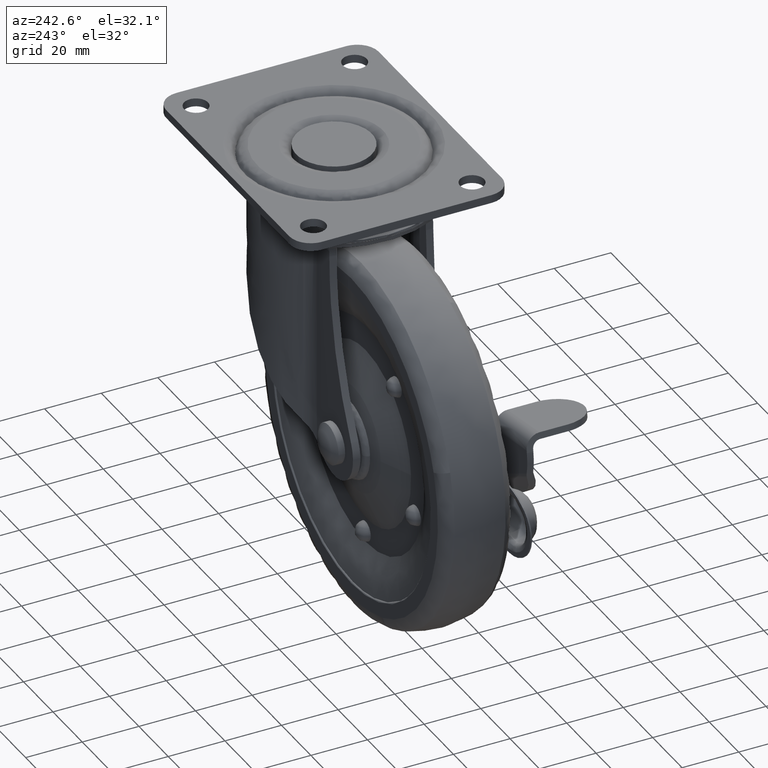
[diagram: clean part render]
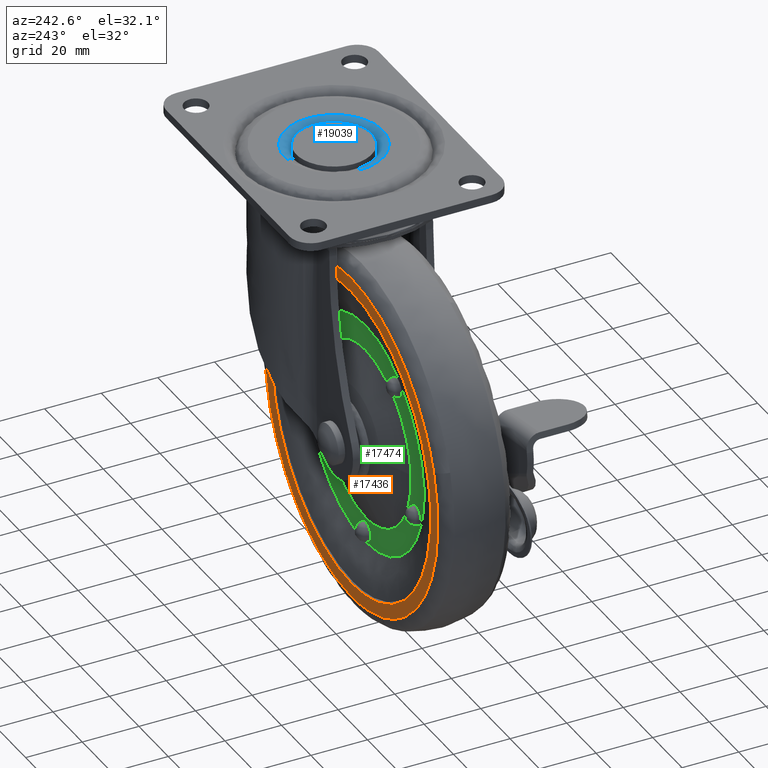
[diagram: same view with three faces highlighted in distinct colors, each labeled with its STEP entity id]
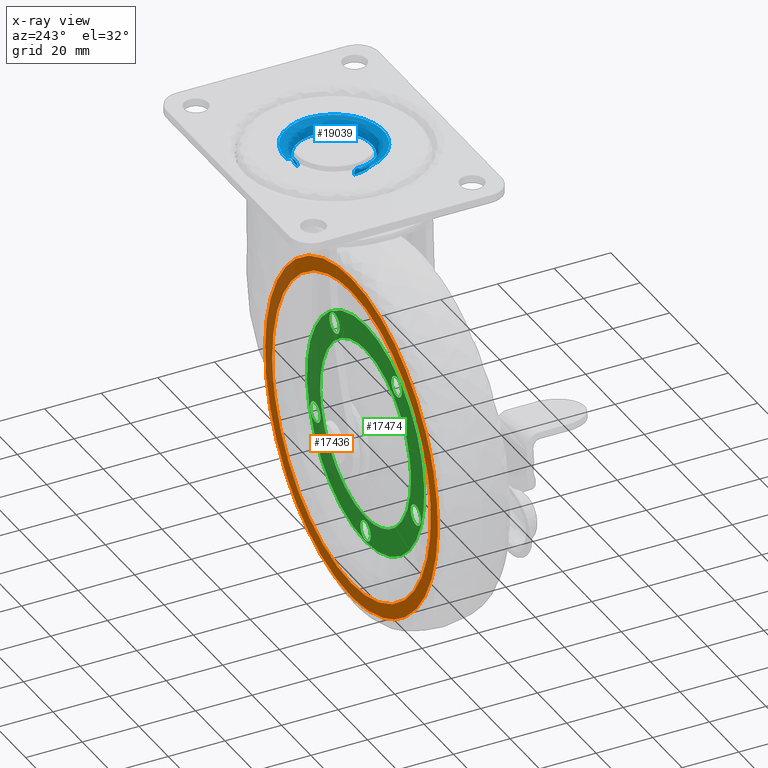
[diagram: x-ray of the same camera — body ghosted, the three highlighted faces saturated]
A machine part, auxiliary view with three faces highlighted in distinct colors.
The next image is the same camera in x-ray (body ghosted, the three faces saturated) — at least one of them is partly hidden behind the body in this view.
Their STEP definitions:

[orange] entity #17436 — the highlighted face is a freeform B-spline surface patch.
#15825=CARTESIAN_POINT('',(53.995736377495369,12.500000000000000,-85.678566153704367));
#15826=VERTEX_POINT('',#15825);
#15840=CARTESIAN_POINT('',(0.0,12.500000000000000,-139.0));
#15841=VERTEX_POINT('',#15840);
#15842=CARTESIAN_POINT('',(0.0,12.500000000000000,-139.0));
#15843=CARTESIAN_POINT('',(53.325644214752344,12.499999999999998,-139.0));
#15844=CARTESIAN_POINT('',(53.995736377495369,12.500000000000004,-85.678566153704367));
#15852=(BOUNDED_CURVE()B_SPLINE_CURVE(2,(#15842,#15843,#15844),.UNSPECIFIED.,.F.,.U.)B_SPLINE_CURVE_WITH_KNOTS((3,3),(0.0,0.247784295920928),.UNSPECIFIED.)CURVE()GEOMETRIC_REPRESENTATION_ITEM()RATIONAL_B_SPLINE_CURVE((1.0,0.709702639985177,0.994854295642171))REPRESENTATION_ITEM(''));
#15853=EDGE_CURVE('',#15841,#15826,#15852,.T.);
#15855=CARTESIAN_POINT('',(-53.868546384794037,12.500000000000000,-81.234404415107662));
#15856=VERTEX_POINT('',#15855);
#15857=CARTESIAN_POINT('',(-53.868546384794044,12.500000000000004,-81.234404415107662));
#15858=CARTESIAN_POINT('',(-53.999999999999993,12.500000000000004,-83.114907742766107));
#15859=CARTESIAN_POINT('',(-54.0,12.500000000000000,-85.0));
#15860=CARTESIAN_POINT('',(-54.0,12.500000000000000,-139.0));
#15861=CARTESIAN_POINT('',(0.0,12.500000000000000,-139.0));
#15869=(BOUNDED_CURVE()B_SPLINE_CURVE(2,(#15857,#15858,#15859,#15860,#15861),.UNSPECIFIED.,.F.,.U.)B_SPLINE_CURVE_WITH_KNOTS((3,2,3),(0.737833686535138,0.750000000000000,1.0),.UNSPECIFIED.)CURVE()GEOMETRIC_REPRESENTATION_ITEM()RATIONAL_B_SPLINE_CURVE((0.972879876387074,0.985746277152733,1.0,0.707106781186548,1.0))REPRESENTATION_ITEM(''));
#15870=EDGE_CURVE('',#15856,#15841,#15869,.T.);
#15913=CARTESIAN_POINT('',(0.0,12.500000000000000,-31.000000000000011));
#15914=VERTEX_POINT('',#15913);
#15915=CARTESIAN_POINT('',(0.0,12.500000000000000,-31.000000000000011));
#15916=CARTESIAN_POINT('',(-50.356989752398540,12.500000000000000,-31.0));
#15917=CARTESIAN_POINT('',(-53.868546384794044,12.499999999999998,-81.234404415107662));
#15925=(BOUNDED_CURVE()B_SPLINE_CURVE(2,(#15915,#15916,#15917),.UNSPECIFIED.,.F.,.U.)B_SPLINE_CURVE_WITH_KNOTS((3,3),(0.500000000000000,0.737833686535138),.UNSPECIFIED.)CURVE()GEOMETRIC_REPRESENTATION_ITEM()RATIONAL_B_SPLINE_CURVE((1.0,0.721360504033815,0.972879876387075))REPRESENTATION_ITEM(''));
#15926=EDGE_CURVE('',#15914,#15856,#15925,.T.);
#15928=CARTESIAN_POINT('',(53.995736377495369,12.500000000000004,-85.678566153704367));
#15929=CARTESIAN_POINT('',(53.999999999999993,12.500000000000005,-85.339296471684889));
#15930=CARTESIAN_POINT('',(54.0,12.500000000000000,-85.0));
#15931=CARTESIAN_POINT('',(54.0,12.500000000000000,-31.000000000000007));
#15932=CARTESIAN_POINT('',(0.0,12.500000000000000,-31.000000000000011));
#15940=(BOUNDED_CURVE()B_SPLINE_CURVE(2,(#15928,#15929,#15930,#15931,#15932),.UNSPECIFIED.,.F.,.U.)B_SPLINE_CURVE_WITH_KNOTS((3,2,3),(0.247784295920928,0.250000000000000,0.500000000000000),.UNSPECIFIED.)CURVE()GEOMETRIC_REPRESENTATION_ITEM()RATIONAL_B_SPLINE_CURVE((0.994854295642171,0.997404141201370,1.0,0.707106781186548,1.0))REPRESENTATION_ITEM(''));
#15941=EDGE_CURVE('',#15826,#15914,#15940,.T.);
#16001=CARTESIAN_POINT('',(-21.356366163005010,12.500000000000000,-139.836568345319390));
#16002=VERTEX_POINT('',#16001);
#16016=CARTESIAN_POINT('',(0.0,12.500000000000000,-143.848480035423710));
#16017=VERTEX_POINT('',#16016);
#16018=CARTESIAN_POINT('',(-21.356366163005010,12.500000000000000,-139.836568345319360));
#16019=CARTESIAN_POINT('',(-11.055012999424447,12.499999999999996,-143.848480035423730));
#16020=CARTESIAN_POINT('',(0.0,12.500000000000000,-143.848480035423710));
#16028=(BOUNDED_CURVE()B_SPLINE_CURVE(2,(#16018,#16019,#16020),.UNSPECIFIED.,.F.,.U.)B_SPLINE_CURVE_WITH_KNOTS((3,3),(0.938377988109966,1.0),.UNSPECIFIED.)CURVE()GEOMETRIC_REPRESENTATION_ITEM()RATIONAL_B_SPLINE_CURVE((0.891200894977974,0.927805322351068,1.0))REPRESENTATION_ITEM(''));
#16029=EDGE_CURVE('',#16002,#16017,#16028,.T.);
#16031=CARTESIAN_POINT('',(0.0,12.500000000000000,-26.151519964576309));
#16032=VERTEX_POINT('',#16031);
#16033=CARTESIAN_POINT('',(0.0,12.500000000000000,-143.848480035423710));
#16034=CARTESIAN_POINT('',(58.848480035423691,12.499999999999998,-143.848480035423710));
#16035=CARTESIAN_POINT('',(58.848480035423698,12.500000000000000,-85.0));
#16036=CARTESIAN_POINT('',(58.848480035423691,12.499999999999998,-26.151519964576313));
#16037=CARTESIAN_POINT('',(0.0,12.500000000000000,-26.151519964576309));
#16045=(BOUNDED_CURVE()B_SPLINE_CURVE(2,(#16033,#16034,#16035,#16036,#16037),.UNSPECIFIED.,.F.,.U.)B_SPLINE_CURVE_WITH_KNOTS((3,2,3),(0.0,0.250000000000000,0.500000000000000),.UNSPECIFIED.)CURVE()GEOMETRIC_REPRESENTATION_ITEM()RATIONAL_B_SPLINE_CURVE((1.0,0.707106781186547,1.0,0.707106781186547,1.0))REPRESENTATION_ITEM(''));
#16046=EDGE_CURVE('',#16017,#16032,#16045,.T.);
#16048=CARTESIAN_POINT('',(-55.968230416003472,12.500000000000000,-66.814819574344227));
#16049=VERTEX_POINT('',#16048);
#16050=CARTESIAN_POINT('',(0.0,12.500000000000000,-26.151519964576309));
#16051=CARTESIAN_POINT('',(-42.755923453926989,12.500000000000000,-26.151519964576309));
#16052=CARTESIAN_POINT('',(-55.968230416003465,12.499999999999995,-66.814819574344227));
#16060=(BOUNDED_CURVE()B_SPLINE_CURVE(2,(#16050,#16051,#16052),.UNSPECIFIED.,.F.,.U.)B_SPLINE_CURVE_WITH_KNOTS((3,3),(0.500000000000000,0.697450174525111),.UNSPECIFIED.)CURVE()GEOMETRIC_REPRESENTATION_ITEM()RATIONAL_B_SPLINE_CURVE((1.0,0.768672731312249,0.902750339223008))REPRESENTATION_ITEM(''));
#16061=EDGE_CURVE('',#16032,#16049,#16060,.T.);
#16174=CARTESIAN_POINT('',(-55.968230416003465,12.499999999999995,-66.814819574344227));
#16175=CARTESIAN_POINT('',(-58.848480035423698,12.499999999999998,-75.679316425450025));
#16176=CARTESIAN_POINT('',(-58.848480035423698,12.500000000000000,-85.0));
#16177=CARTESIAN_POINT('',(-58.848480035423698,12.500000000000000,-125.235083664410910));
#16178=CARTESIAN_POINT('',(-21.356366163005017,12.500000000000002,-139.836568345319390));
#16186=(BOUNDED_CURVE()B_SPLINE_CURVE(2,(#16174,#16175,#16176,#16177,#16178),.UNSPECIFIED.,.F.,.U.)B_SPLINE_CURVE_WITH_KNOTS((3,2,3),(0.697450174525111,0.750000000000000,0.938377988109966),.UNSPECIFIED.)CURVE()GEOMETRIC_REPRESENTATION_ITEM()RATIONAL_B_SPLINE_CURVE((0.902750339223008,0.938434049874298,1.0,0.779301458835479,0.891200894977974))REPRESENTATION_ITEM(''));
#16187=EDGE_CURVE('',#16049,#16002,#16186,.T.);
#17419=CARTESIAN_POINT('',(-64.723397856794890,12.500000000000000,-149.727444067697890));
#17420=CARTESIAN_POINT('',(-64.723397856794890,12.500000000000000,-20.272553827716528));
#17421=CARTESIAN_POINT('',(64.727253678987864,12.500000000000000,-149.727444067697890));
#17422=CARTESIAN_POINT('',(64.727253678987864,12.500000000000000,-20.272553827716528));
#17423=B_SPLINE_SURFACE_WITH_KNOTS('',1,1,((#17419,#17421),(#17420,#17422)),.UNSPECIFIED.,.F.,.F.,.U.,(2,2),(2,2),(0.0,129.454890239981410),(0.0,129.450651535782810),.UNSPECIFIED.);
#17424=ORIENTED_EDGE('',*,*,#16061,.F.);
#17425=ORIENTED_EDGE('',*,*,#16046,.F.);
#17426=ORIENTED_EDGE('',*,*,#16029,.F.);
#17427=ORIENTED_EDGE('',*,*,#16187,.F.);
#17428=EDGE_LOOP('',(#17424,#17425,#17426,#17427));
#17429=FACE_OUTER_BOUND('',#17428,.T.);
#17430=ORIENTED_EDGE('',*,*,#15853,.T.);
#17431=ORIENTED_EDGE('',*,*,#15941,.T.);
#17432=ORIENTED_EDGE('',*,*,#15926,.T.);
#17433=ORIENTED_EDGE('',*,*,#15870,.T.);
#17434=EDGE_LOOP('',(#17430,#17431,#17432,#17433));
#17435=FACE_BOUND('',#17434,.T.);
#17436=ADVANCED_FACE('',(#17429,#17435),#17423,.T.);

[blue] entity #19039 — the highlighted face is a freeform B-spline surface patch.
#17766=CARTESIAN_POINT('',(12.497516776657950,-4.694099958155246,-4.0));
#17767=VERTEX_POINT('',#17766);
#17768=CARTESIAN_POINT('',(13.350000000000000,0.0,-4.0));
#17769=VERTEX_POINT('',#17768);
#17770=CARTESIAN_POINT('',(12.497516776657953,-4.694099958155246,-4.000000000000001));
#17771=CARTESIAN_POINT('',(13.349999999999998,-2.424458604021889,-4.000000000000000));
#17772=CARTESIAN_POINT('',(13.350000000000000,0.0,-4.0));
#17780=(BOUNDED_CURVE()B_SPLINE_CURVE(2,(#17770,#17771,#17772),.UNSPECIFIED.,.F.,.U.)B_SPLINE_CURVE_WITH_KNOTS((3,3),(0.440284170898208,0.500000000000000),.UNSPECIFIED.)CURVE()GEOMETRIC_REPRESENTATION_ITEM()RATIONAL_B_SPLINE_CURVE((0.893499554634907,0.930038554401048,1.0))REPRESENTATION_ITEM(''));
#17781=EDGE_CURVE('',#17767,#17769,#17780,.T.);
#17783=CARTESIAN_POINT('',(-0.930938908603854,13.317501745764940,-3.999999145885989));
#17784=VERTEX_POINT('',#17783);
#17785=CARTESIAN_POINT('',(13.350000000000000,0.0,-4.0));
#17786=CARTESIAN_POINT('',(13.350000000000000,13.350000000000000,-4.000000000000000));
#17787=CARTESIAN_POINT('',(0.0,13.350000000000000,-4.0));
#17788=CARTESIAN_POINT('',(-0.466036696999322,13.350000000000003,-4.000000000000000));
#17789=CARTESIAN_POINT('',(-0.930938908603854,13.317501745764941,-3.999999145885989));
#17797=(BOUNDED_CURVE()B_SPLINE_CURVE(2,(#17785,#17786,#17787,#17788,#17789),.UNSPECIFIED.,.F.,.U.)B_SPLINE_CURVE_WITH_KNOTS((3,2,3),(0.500000000000000,0.750000000000000,0.762166313466716),.UNSPECIFIED.)CURVE()GEOMETRIC_REPRESENTATION_ITEM()RATIONAL_B_SPLINE_CURVE((1.0,0.707106781186548,1.0,0.985746277150560,0.972879876383152))REPRESENTATION_ITEM(''));
#17798=EDGE_CURVE('',#17769,#17784,#17797,.T.);
#17815=CARTESIAN_POINT('',(-13.348945940118190,-0.167756632676556,-3.999999145886663));
#17816=VERTEX_POINT('',#17815);
#17830=CARTESIAN_POINT('',(-0.814998002996706,-13.325099558919080,-3.999999998386633));
#17831=VERTEX_POINT('',#17830);
#17832=CARTESIAN_POINT('',(-13.348945940118190,-0.167756632676556,-3.999999145886663));
#17833=CARTESIAN_POINT('',(-13.193111410118176,-12.568021710021224,-3.999999949333503));
#17834=CARTESIAN_POINT('',(-0.814998002996706,-13.325099558919083,-3.999999998386633));
#17842=(BOUNDED_CURVE()B_SPLINE_CURVE(2,(#17832,#17833,#17834),.UNSPECIFIED.,.F.,.U.)B_SPLINE_CURVE_WITH_KNOTS((3,3),(0.002215704084432,0.239332962236624),.UNSPECIFIED.)CURVE()GEOMETRIC_REPRESENTATION_ITEM()RATIONAL_B_SPLINE_CURVE((0.994854295629834,0.721978331103134,0.976072041661748))REPRESENTATION_ITEM(''));
#17843=EDGE_CURVE('',#17816,#17831,#17842,.T.);
#17921=CARTESIAN_POINT('',(-0.814998002996706,-13.325099558919083,-3.999999998386633));
#17922=CARTESIAN_POINT('',(-0.407879390243107,-13.350000000000001,-4.000000000000001));
#17923=CARTESIAN_POINT('',(0.0,-13.350000000000000,-4.0));
#17924=CARTESIAN_POINT('',(9.246338102476624,-13.350000000000001,-4.0));
#17925=CARTESIAN_POINT('',(12.497516776657953,-4.694099958155246,-4.000000000000001));
#17933=(BOUNDED_CURVE()B_SPLINE_CURVE(2,(#17921,#17922,#17923,#17924,#17925),.UNSPECIFIED.,.F.,.U.)B_SPLINE_CURVE_WITH_KNOTS((3,2,3),(0.239332962236624,0.250000000000000,0.440284170898208),.UNSPECIFIED.)CURVE()GEOMETRIC_REPRESENTATION_ITEM()RATIONAL_B_SPLINE_CURVE((0.976072041661748,0.987502787897120,1.0,0.777068226785499,0.893499554634907))REPRESENTATION_ITEM(''));
#17934=EDGE_CURVE('',#17831,#17767,#17933,.T.);
#18936=CARTESIAN_POINT('',(-0.931613368065639,13.327160767495291,-4.278148475791331));
#18937=CARTESIAN_POINT('',(-0.550196120695723,13.353823116112501,-4.278148475791329));
#18938=CARTESIAN_POINT('',(-0.167878303636279,13.358627716400838,-4.278148475791328));
#18939=CARTESIAN_POINT('',(13.190749412764550,13.526506020037106,-4.278148475791330));
#18940=CARTESIAN_POINT('',(13.358627716400838,0.167878303636280,-4.278148475791328));
#18941=CARTESIAN_POINT('',(13.526506020037109,-13.190749412764546,-4.278148475791330));
#18942=CARTESIAN_POINT('',(0.167878303636281,-13.358627716400838,-4.278148475791328));
#18943=CARTESIAN_POINT('',(-13.190749412764546,-13.526506020037109,-4.278148475791330));
#18944=CARTESIAN_POINT('',(-13.358627716400838,-0.167878303636282,-4.278148475791328));
#18945=CARTESIAN_POINT('',(-0.909310514195910,13.008108111871652,0.310149659348824));
#18946=CARTESIAN_POINT('',(-0.537024407944277,13.034132163009012,0.310149659348825));
#18947=CARTESIAN_POINT('',(-0.163859291670326,13.038821741012550,0.310149659348825));
#18948=CARTESIAN_POINT('',(12.874962449342224,13.202681032682877,0.310149659348824));
#18949=CARTESIAN_POINT('',(13.038821741012550,0.163859291670327,0.310149659348825));
#18950=CARTESIAN_POINT('',(13.202681032682882,-12.874962449342220,0.310149659348824));
#18951=CARTESIAN_POINT('',(0.163859291670328,-13.038821741012550,0.310149659348825));
#18952=CARTESIAN_POINT('',(-12.874962449342220,-13.202681032682882,0.310149659348824));
#18953=CARTESIAN_POINT('',(-13.038821741012550,-0.163859291670329,0.310149659348825));
#18954=CARTESIAN_POINT('',(-1.229267204717077,17.585236778525633,-0.009682603512310));
#18955=CARTESIAN_POINT('',(-0.725985768901244,17.620417843846681,-0.009682603512310));
#18956=CARTESIAN_POINT('',(-0.221516028126674,17.626757531284269,-0.009682603512310));
#18957=CARTESIAN_POINT('',(17.405241503157601,17.848273559410938,-0.009682603512310));
#18958=CARTESIAN_POINT('',(17.626757531284269,0.221516028126675,-0.009682603512310));
#18959=CARTESIAN_POINT('',(17.848273559410938,-17.405241503157583,-0.009682603512310));
#18960=CARTESIAN_POINT('',(0.221516028126676,-17.626757531284269,-0.009682603512310));
#18961=CARTESIAN_POINT('',(-17.405241503157583,-17.848273559410938,-0.009682603512310));
#18962=CARTESIAN_POINT('',(-17.626757531284269,-0.221516028126677,-0.009682603512310));
#18970=(BOUNDED_SURFACE()B_SPLINE_SURFACE(2,2,((#18936,#18945,#18954),(#18937,#18946,#18955),(#18938,#18947,#18956),(#18939,#18948,#18957),(#18940,#18949,#18958),(#18941,#18950,#18959),(#18942,#18951,#18960),(#18943,#18952,#18961),(#18944,#18953,#18962)),.UNSPECIFIED.,.F.,.F.,.U.)B_SPLINE_SURFACE_WITH_KNOTS((3,2,2,2,3),(3,3),(0.0,1.168289853993682,30.375564058062992,59.582838262132299,88.790112466201606),(0.0,7.289496831219103),.UNSPECIFIED.)GEOMETRIC_REPRESENTATION_ITEM()RATIONAL_B_SPLINE_SURFACE(((0.889999303923509,0.584039716581426,0.889999395383746),(0.899812874991286,0.590479626410353,0.899812967460008),(0.910479799180367,0.597479527817829,0.910479892745269),(0.643806440133804,0.422481825740123,0.643806506294180),(0.910479799180367,0.597479527817829,0.910479892745269),(0.643806440133804,0.422481825740123,0.643806506294180),(0.910479799180367,0.597479527817829,0.910479892745269),(0.643806440133804,0.422481825740123,0.643806506294180),(0.910479799180367,0.597479527817829,0.910479892745269)))REPRESENTATION_ITEM('')SURFACE());
#18971=ORIENTED_EDGE('',*,*,#17798,.F.);
#18972=ORIENTED_EDGE('',*,*,#17781,.F.);
#18973=ORIENTED_EDGE('',*,*,#17934,.F.);
#18974=ORIENTED_EDGE('',*,*,#17843,.F.);
#18975=CARTESIAN_POINT('',(-17.348630116598169,-0.218020791951193,-6.912640E-016));
#18976=VERTEX_POINT('',#18975);
#18977=CARTESIAN_POINT('',(-13.348945940118185,-0.167756632676556,-3.999999145886663));
#18978=CARTESIAN_POINT('',(-13.348947648212375,-0.167756653908398,-6.766378E-010));
#18979=CARTESIAN_POINT('',(-17.348630116598173,-0.218020791951193,-6.912640E-016));
#18987=(BOUNDED_CURVE()B_SPLINE_CURVE(2,(#18977,#18978,#18979),.UNSPECIFIED.,.F.,.U.)B_SPLINE_CURVE_WITH_KNOTS((3,3),(-1.725134205337270,-0.274865356891658),.UNSPECIFIED.)CURVE()GEOMETRIC_REPRESENTATION_ITEM()RATIONAL_B_SPLINE_CURVE((0.883341993396375,0.624617302286893,0.883342149591165))REPRESENTATION_ITEM(''));
#18988=EDGE_CURVE('',#17816,#18976,#18987,.T.);
#18989=ORIENTED_EDGE('',*,*,#18988,.T.);
#18990=CARTESIAN_POINT('',(17.350000000000001,0.0,0.0));
#18991=VERTEX_POINT('',#18990);
#18992=CARTESIAN_POINT('',(17.350000000000001,0.0,0.0));
#18993=CARTESIAN_POINT('',(17.350000000000001,-17.350000000000001,0.0));
#18994=CARTESIAN_POINT('',(0.0,-17.350000000000001,0.0));
#18995=CARTESIAN_POINT('',(-17.133331983932798,-17.350000000000009,0.0));
#18996=CARTESIAN_POINT('',(-17.348630116598169,-0.218020791951193,-6.912640E-016));
#19004=(BOUNDED_CURVE()B_SPLINE_CURVE(2,(#18992,#18993,#18994,#18995,#18996),.UNSPECIFIED.,.F.,.U.)B_SPLINE_CURVE_WITH_KNOTS((3,2,3),(0.500000000000000,0.750000000000000,0.997784295922148),.UNSPECIFIED.)CURVE()GEOMETRIC_REPRESENTATION_ITEM()RATIONAL_B_SPLINE_CURVE((1.0,0.707106781186548,1.0,0.709702639983748,0.994854295644978))REPRESENTATION_ITEM(''));
#19005=EDGE_CURVE('',#18991,#18976,#19004,.T.);
#19006=ORIENTED_EDGE('',*,*,#19005,.F.);
#19007=CARTESIAN_POINT('',(-1.209871915503455,17.307764437935820,-7.071713E-016));
#19008=VERTEX_POINT('',#19007);
#19009=CARTESIAN_POINT('',(-1.209871915503455,17.307764437935820,-7.071713E-016));
#19010=CARTESIAN_POINT('',(-0.605673161318082,17.349999999999998,0.0));
#19011=CARTESIAN_POINT('',(0.0,17.350000000000001,0.0));
#19012=CARTESIAN_POINT('',(17.350000000000001,17.350000000000001,0.0));
#19013=CARTESIAN_POINT('',(17.350000000000001,0.0,0.0));
#19021=(BOUNDED_CURVE()B_SPLINE_CURVE(2,(#19009,#19010,#19011,#19012,#19013),.UNSPECIFIED.,.F.,.U.)B_SPLINE_CURVE_WITH_KNOTS((3,2,3),(0.237833686517475,0.250000000000000,0.500000000000000),.UNSPECIFIED.)CURVE()GEOMETRIC_REPRESENTATION_ITEM()RATIONAL_B_SPLINE_CURVE((0.972879876349716,0.985746277132039,1.0,0.707106781186548,1.0))REPRESENTATION_ITEM(''));
#19022=EDGE_CURVE('',#19008,#18991,#19021,.T.);
#19023=ORIENTED_EDGE('',*,*,#19022,.F.);
#19024=CARTESIAN_POINT('',(-0.930938908603854,13.317501745764945,-3.999999145885988));
#19025=CARTESIAN_POINT('',(-0.930939027652422,13.317503449839045,-6.282414E-009));
#19026=CARTESIAN_POINT('',(-1.209871915503455,17.307764437935820,-7.071713E-016));
#19034=(BOUNDED_CURVE()B_SPLINE_CURVE(2,(#19024,#19025,#19026),.UNSPECIFIED.,.F.,.U.)B_SPLINE_CURVE_WITH_KNOTS((3,3),(-1.725134205336923,-0.274865358328833),.UNSPECIFIED.)CURVE()GEOMETRIC_REPRESENTATION_ITEM()RATIONAL_B_SPLINE_CURVE((0.863471922630766,0.610567036513124,0.863472074810958))REPRESENTATION_ITEM(''));
#19035=EDGE_CURVE('',#17784,#19008,#19034,.T.);
#19036=ORIENTED_EDGE('',*,*,#19035,.F.);
#19037=EDGE_LOOP('',(#18971,#18972,#18973,#18974,#18989,#19006,#19023,#19036));
#19038=FACE_OUTER_BOUND('',#19037,.T.);
#19039=ADVANCED_FACE('',(#19038),#18970,.T.);

[green] entity #17474 — the highlighted face is a freeform B-spline surface patch.
#14070=CARTESIAN_POINT('',(-30.942178751080359,7.499999999998607,-83.107495274391624));
#14071=VERTEX_POINT('',#14070);
#14077=CARTESIAN_POINT('',(0.0,7.500000000000000,-54.000000000000007));
#14078=VERTEX_POINT('',#14077);
#14079=CARTESIAN_POINT('',(0.0,7.500000000000000,-54.000000000000007));
#14080=CARTESIAN_POINT('',(-29.161888074024450,7.500000000000000,-54.000000000000021));
#14081=CARTESIAN_POINT('',(-30.942178751080363,7.499999999998607,-83.107495274391624));
#14089=(BOUNDED_CURVE()B_SPLINE_CURVE(2,(#14079,#14080,#14081),.UNSPECIFIED.,.F.,.U.)B_SPLINE_CURVE_WITH_KNOTS((3,3),(0.500000000000000,0.739332962241661),.UNSPECIFIED.)CURVE()GEOMETRIC_REPRESENTATION_ITEM()RATIONAL_B_SPLINE_CURVE((1.0,0.719603993283526,0.976072041672542))REPRESENTATION_ITEM(''));
#14090=EDGE_CURVE('',#14078,#14071,#14089,.T.);
#14092=CARTESIAN_POINT('',(0.0,7.500000000000000,-116.0));
#14093=VERTEX_POINT('',#14092);
#14094=CARTESIAN_POINT('',(0.0,7.500000000000000,-116.0));
#14095=CARTESIAN_POINT('',(31.000000000000007,7.500000000000000,-116.0));
#14096=CARTESIAN_POINT('',(31.0,7.500000000000000,-85.0));
#14097=CARTESIAN_POINT('',(31.000000000000007,7.500000000000000,-54.000000000000021));
#14098=CARTESIAN_POINT('',(0.0,7.500000000000000,-54.000000000000007));
#14106=(BOUNDED_CURVE()B_SPLINE_CURVE(2,(#14094,#14095,#14096,#14097,#14098),.UNSPECIFIED.,.F.,.U.)B_SPLINE_CURVE_WITH_KNOTS((3,2,3),(0.0,0.250000000000000,0.500000000000000),.UNSPECIFIED.)CURVE()GEOMETRIC_REPRESENTATION_ITEM()RATIONAL_B_SPLINE_CURVE((1.0,0.707106781186548,1.0,0.707106781186548,1.0))REPRESENTATION_ITEM(''));
#14107=EDGE_CURVE('',#14093,#14078,#14106,.T.);
#14109=CARTESIAN_POINT('',(-10.900157206553001,7.499999999985758,-114.020450941966500));
#14110=VERTEX_POINT('',#14109);
#14111=CARTESIAN_POINT('',(-10.900157206552997,7.499999999985759,-114.020450941966500));
#14112=CARTESIAN_POINT('',(-5.629828968510090,7.499999999999999,-116.000000000000030));
#14113=CARTESIAN_POINT('',(0.0,7.500000000000000,-116.0));
#14121=(BOUNDED_CURVE()B_SPLINE_CURVE(2,(#14111,#14112,#14113),.UNSPECIFIED.,.F.,.U.)B_SPLINE_CURVE_WITH_KNOTS((3,3),(0.940284170894564,1.0),.UNSPECIFIED.)CURVE()GEOMETRIC_REPRESENTATION_ITEM()RATIONAL_B_SPLINE_CURVE((0.893499554630448,0.930038554396779,1.0))REPRESENTATION_ITEM(''));
#14122=EDGE_CURVE('',#14110,#14093,#14121,.T.);
#14162=CARTESIAN_POINT('',(-30.942178751080363,7.499999999998607,-83.107495274391624));
#14163=CARTESIAN_POINT('',(-31.000000000000004,7.500000000000001,-84.052864337716116));
#14164=CARTESIAN_POINT('',(-31.0,7.500000000000000,-85.0));
#14165=CARTESIAN_POINT('',(-31.0,7.500000000000000,-106.470897465895870));
#14166=CARTESIAN_POINT('',(-10.900157206552997,7.499999999985759,-114.020450941966530));
#14174=(BOUNDED_CURVE()B_SPLINE_CURVE(2,(#14162,#14163,#14164,#14165,#14166),.UNSPECIFIED.,.F.,.U.)B_SPLINE_CURVE_WITH_KNOTS((3,2,3),(0.739332962241661,0.750000000000000,0.940284170894563),.UNSPECIFIED.)CURVE()GEOMETRIC_REPRESENTATION_ITEM()RATIONAL_B_SPLINE_CURVE((0.976072041672543,0.987502787903022,1.0,0.777068226789770,0.893499554630447))REPRESENTATION_ITEM(''));
#14175=EDGE_CURVE('',#14071,#14110,#14174,.T.);
#15595=CARTESIAN_POINT('',(-24.317211907798370,7.500000000012631,-116.759615945926400));
#15596=VERTEX_POINT('',#15595);
#15610=CARTESIAN_POINT('',(0.0,7.500000000000000,-125.0));
#15611=VERTEX_POINT('',#15610);
#15612=CARTESIAN_POINT('',(-24.317211907798367,7.500000000012631,-116.759615945926370));
#15613=CARTESIAN_POINT('',(-13.554817197527523,7.500000000000001,-125.000000000000040));
#15614=CARTESIAN_POINT('',(0.0,7.500000000000000,-125.0));
#15622=(BOUNDED_CURVE()B_SPLINE_CURVE(2,(#15612,#15613,#15614),.UNSPECIFIED.,.F.,.U.)B_SPLINE_CURVE_WITH_KNOTS((3,3),(0.894938183777418,1.0),.UNSPECIFIED.)CURVE()GEOMETRIC_REPRESENTATION_ITEM()RATIONAL_B_SPLINE_CURVE((0.857279284501945,0.876912425888722,1.0))REPRESENTATION_ITEM(''));
#15623=EDGE_CURVE('',#15596,#15611,#15622,.T.);
#15625=CARTESIAN_POINT('',(24.317211907798360,7.500000000012631,-53.240384054073623));
#15626=VERTEX_POINT('',#15625);
#15627=CARTESIAN_POINT('',(0.0,7.500000000000000,-125.0));
#15628=CARTESIAN_POINT('',(39.999999999999993,7.500000000000000,-125.0));
#15629=CARTESIAN_POINT('',(40.0,7.500000000000000,-85.0));
#15630=CARTESIAN_POINT('',(40.0,7.499999999999999,-65.248138870545233));
#15631=CARTESIAN_POINT('',(24.317211907798352,7.500000000012631,-53.240384054073623));
#15639=(BOUNDED_CURVE()B_SPLINE_CURVE(2,(#15627,#15628,#15629,#15630,#15631),.UNSPECIFIED.,.F.,.U.)B_SPLINE_CURVE_WITH_KNOTS((3,2,3),(0.0,0.250000000000000,0.394938183777418),.UNSPECIFIED.)CURVE()GEOMETRIC_REPRESENTATION_ITEM()RATIONAL_B_SPLINE_CURVE((1.0,0.707106781186548,1.0,0.830194355297825,0.857279284501945))REPRESENTATION_ITEM(''));
#15640=EDGE_CURVE('',#15611,#15626,#15639,.T.);
#15759=CARTESIAN_POINT('',(0.0,7.500000000000000,-45.000000000000007));
#15760=VERTEX_POINT('',#15759);
#15761=CARTESIAN_POINT('',(24.317211907798352,7.500000000012631,-53.240384054073623));
#15762=CARTESIAN_POINT('',(13.554817197527509,7.500000000000000,-45.000000000000014));
#15763=CARTESIAN_POINT('',(0.0,7.500000000000000,-45.000000000000007));
#15771=(BOUNDED_CURVE()B_SPLINE_CURVE(2,(#15761,#15762,#15763),.UNSPECIFIED.,.F.,.U.)B_SPLINE_CURVE_WITH_KNOTS((3,3),(0.394938183777418,0.500000000000000),.UNSPECIFIED.)CURVE()GEOMETRIC_REPRESENTATION_ITEM()RATIONAL_B_SPLINE_CURVE((0.857279284501945,0.876912425888722,1.0))REPRESENTATION_ITEM(''));
#15772=EDGE_CURVE('',#15626,#15760,#15771,.T.);
#15774=CARTESIAN_POINT('',(0.0,7.500000000000000,-45.000000000000007));
#15775=CARTESIAN_POINT('',(-39.999999999999993,7.500000000000000,-45.000000000000014));
#15776=CARTESIAN_POINT('',(-40.0,7.500000000000000,-85.0));
#15777=CARTESIAN_POINT('',(-40.0,7.500000000000000,-104.751861129454770));
#15778=CARTESIAN_POINT('',(-24.317211907798367,7.500000000012631,-116.759615945926370));
#15786=(BOUNDED_CURVE()B_SPLINE_CURVE(2,(#15774,#15775,#15776,#15777,#15778),.UNSPECIFIED.,.F.,.U.)B_SPLINE_CURVE_WITH_KNOTS((3,2,3),(0.500000000000000,0.750000000000000,0.894938183777418),.UNSPECIFIED.)CURVE()GEOMETRIC_REPRESENTATION_ITEM()RATIONAL_B_SPLINE_CURVE((1.0,0.707106781186548,1.0,0.830194355297825,0.857279284501945))REPRESENTATION_ITEM(''));
#15787=EDGE_CURVE('',#15760,#15596,#15786,.T.);
#16608=CARTESIAN_POINT('',(-34.238034586625453,7.500000000000000,-92.624611797498318));
#16609=VERTEX_POINT('',#16608);
#16610=CARTESIAN_POINT('',(-34.238034586625453,7.500000000000000,-99.624611797498090));
#16611=VERTEX_POINT('',#16610);
#16612=CARTESIAN_POINT('',(-34.238034586625453,7.500000000000000,-92.624611797498318));
#16613=CARTESIAN_POINT('',(-37.738034586625332,7.500000000000000,-92.624611797498332));
#16614=CARTESIAN_POINT('',(-37.738034586625339,7.500000000000000,-96.124611797498204));
#16615=CARTESIAN_POINT('',(-37.738034586625332,7.500000000000000,-99.624611797498076));
#16616=CARTESIAN_POINT('',(-34.238034586625453,7.500000000000000,-99.624611797498090));
#16624=(BOUNDED_CURVE()B_SPLINE_CURVE(2,(#16612,#16613,#16614,#16615,#16616),.UNSPECIFIED.,.F.,.U.)B_SPLINE_CURVE_WITH_KNOTS((3,2,3),(0.500000000000000,0.750000000000000,1.0),.UNSPECIFIED.)CURVE()GEOMETRIC_REPRESENTATION_ITEM()RATIONAL_B_SPLINE_CURVE((1.0,0.707106781186547,1.0,0.707106781186547,1.0))REPRESENTATION_ITEM(''));
#16625=EDGE_CURVE('',#16609,#16611,#16624,.T.);
#16627=CARTESIAN_POINT('',(-34.238034586625453,7.500000000000000,-99.624611797498090));
#16628=CARTESIAN_POINT('',(-30.738034586625563,7.500000000000000,-99.624611797498076));
#16629=CARTESIAN_POINT('',(-30.738034586625560,7.500000000000000,-96.124611797498204));
#16630=CARTESIAN_POINT('',(-30.738034586625563,7.500000000000000,-92.624611797498332));
#16631=CARTESIAN_POINT('',(-34.238034586625453,7.500000000000000,-92.624611797498318));
#16639=(BOUNDED_CURVE()B_SPLINE_CURVE(2,(#16627,#16628,#16629,#16630,#16631),.UNSPECIFIED.,.F.,.U.)B_SPLINE_CURVE_WITH_KNOTS((3,2,3),(0.0,0.250000000000000,0.500000000000000),.UNSPECIFIED.)CURVE()GEOMETRIC_REPRESENTATION_ITEM()RATIONAL_B_SPLINE_CURVE((1.0,0.707106781186547,1.0,0.707106781186547,1.0))REPRESENTATION_ITEM(''));
#16640=EDGE_CURVE('',#16611,#16609,#16639,.T.);
#16770=CARTESIAN_POINT('',(-21.160269082528998,7.500000000000000,-52.375388202502208));
#16771=VERTEX_POINT('',#16770);
#16772=CARTESIAN_POINT('',(-21.160269082528998,7.500000000000000,-59.375388202502002));
#16773=VERTEX_POINT('',#16772);
#16774=CARTESIAN_POINT('',(-21.160269082528998,7.500000000000000,-52.375388202502208));
#16775=CARTESIAN_POINT('',(-24.660269082528892,7.500000000000000,-52.375388202502215));
#16776=CARTESIAN_POINT('',(-24.660269082528892,7.500000000000000,-55.875388202502101));
#16777=CARTESIAN_POINT('',(-24.660269082528892,7.500000000000000,-59.375388202502002));
#16778=CARTESIAN_POINT('',(-21.160269082528998,7.500000000000000,-59.375388202502002));
#16786=(BOUNDED_CURVE()B_SPLINE_CURVE(2,(#16774,#16775,#16776,#16777,#16778),.UNSPECIFIED.,.F.,.U.)B_SPLINE_CURVE_WITH_KNOTS((3,2,3),(0.500000000000000,0.750000000000000,1.0),.UNSPECIFIED.)CURVE()GEOMETRIC_REPRESENTATION_ITEM()RATIONAL_B_SPLINE_CURVE((1.0,0.707106781186547,1.0,0.707106781186547,1.0))REPRESENTATION_ITEM(''));
#16787=EDGE_CURVE('',#16771,#16773,#16786,.T.);
#16789=CARTESIAN_POINT('',(-21.160269082528998,7.500000000000000,-59.375388202502002));
#16790=CARTESIAN_POINT('',(-17.660269082529108,7.500000000000000,-59.375388202502002));
#16791=CARTESIAN_POINT('',(-17.660269082529108,7.500000000000000,-55.875388202502101));
#16792=CARTESIAN_POINT('',(-17.660269082529108,7.500000000000000,-52.375388202502215));
#16793=CARTESIAN_POINT('',(-21.160269082528998,7.500000000000000,-52.375388202502208));
#16801=(BOUNDED_CURVE()B_SPLINE_CURVE(2,(#16789,#16790,#16791,#16792,#16793),.UNSPECIFIED.,.F.,.U.)B_SPLINE_CURVE_WITH_KNOTS((3,2,3),(0.0,0.250000000000000,0.500000000000000),.UNSPECIFIED.)CURVE()GEOMETRIC_REPRESENTATION_ITEM()RATIONAL_B_SPLINE_CURVE((1.0,0.707106781186547,1.0,0.707106781186547,1.0))REPRESENTATION_ITEM(''));
#16802=EDGE_CURVE('',#16773,#16771,#16801,.T.);
#16932=CARTESIAN_POINT('',(21.160269082528998,7.500000000000000,-52.375388202502208));
#16933=VERTEX_POINT('',#16932);
#16934=CARTESIAN_POINT('',(21.160269082528998,7.500000000000000,-59.375388202502002));
#16935=VERTEX_POINT('',#16934);
#16936=CARTESIAN_POINT('',(21.160269082528998,7.500000000000000,-52.375388202502208));
#16937=CARTESIAN_POINT('',(17.660269082529108,7.500000000000000,-52.375388202502215));
#16938=CARTESIAN_POINT('',(17.660269082529108,7.500000000000000,-55.875388202502101));
#16939=CARTESIAN_POINT('',(17.660269082529108,7.500000000000000,-59.375388202502002));
#16940=CARTESIAN_POINT('',(21.160269082528998,7.500000000000000,-59.375388202502002));
#16948=(BOUNDED_CURVE()B_SPLINE_CURVE(2,(#16936,#16937,#16938,#16939,#16940),.UNSPECIFIED.,.F.,.U.)B_SPLINE_CURVE_WITH_KNOTS((3,2,3),(0.500000000000000,0.750000000000000,1.0),.UNSPECIFIED.)CURVE()GEOMETRIC_REPRESENTATION_ITEM()RATIONAL_B_SPLINE_CURVE((1.0,0.707106781186547,1.0,0.707106781186547,1.0))REPRESENTATION_ITEM(''));
#16949=EDGE_CURVE('',#16933,#16935,#16948,.T.);
#16951=CARTESIAN_POINT('',(21.160269082528998,7.500000000000000,-59.375388202502002));
#16952=CARTESIAN_POINT('',(24.660269082528892,7.500000000000000,-59.375388202502002));
#16953=CARTESIAN_POINT('',(24.660269082528892,7.500000000000000,-55.875388202502101));
#16954=CARTESIAN_POINT('',(24.660269082528892,7.500000000000000,-52.375388202502215));
#16955=CARTESIAN_POINT('',(21.160269082528998,7.500000000000000,-52.375388202502208));
#16963=(BOUNDED_CURVE()B_SPLINE_CURVE(2,(#16951,#16952,#16953,#16954,#16955),.UNSPECIFIED.,.F.,.U.)B_SPLINE_CURVE_WITH_KNOTS((3,2,3),(0.0,0.250000000000000,0.500000000000000),.UNSPECIFIED.)CURVE()GEOMETRIC_REPRESENTATION_ITEM()RATIONAL_B_SPLINE_CURVE((1.0,0.707106781186547,1.0,0.707106781186547,1.0))REPRESENTATION_ITEM(''));
#16964=EDGE_CURVE('',#16935,#16933,#16963,.T.);
#17094=CARTESIAN_POINT('',(34.238034586625453,7.500000000000000,-92.624611797498318));
#17095=VERTEX_POINT('',#17094);
#17096=CARTESIAN_POINT('',(34.238034586625453,7.500000000000000,-99.624611797498090));
#17097=VERTEX_POINT('',#17096);
#17098=CARTESIAN_POINT('',(34.238034586625453,7.500000000000000,-92.624611797498318));
#17099=CARTESIAN_POINT('',(30.738034586625563,7.500000000000000,-92.624611797498332));
#17100=CARTESIAN_POINT('',(30.738034586625560,7.500000000000000,-96.124611797498204));
#17101=CARTESIAN_POINT('',(30.738034586625563,7.500000000000000,-99.624611797498076));
#17102=CARTESIAN_POINT('',(34.238034586625453,7.500000000000000,-99.624611797498090));
#17110=(BOUNDED_CURVE()B_SPLINE_CURVE(2,(#17098,#17099,#17100,#17101,#17102),.UNSPECIFIED.,.F.,.U.)B_SPLINE_CURVE_WITH_KNOTS((3,2,3),(0.500000000000000,0.750000000000000,1.0),.UNSPECIFIED.)CURVE()GEOMETRIC_REPRESENTATION_ITEM()RATIONAL_B_SPLINE_CURVE((1.0,0.707106781186547,1.0,0.707106781186547,1.0))REPRESENTATION_ITEM(''));
#17111=EDGE_CURVE('',#17095,#17097,#17110,.T.);
#17113=CARTESIAN_POINT('',(34.238034586625453,7.500000000000000,-99.624611797498090));
#17114=CARTESIAN_POINT('',(37.738034586625332,7.500000000000000,-99.624611797498076));
#17115=CARTESIAN_POINT('',(37.738034586625339,7.500000000000000,-96.124611797498204));
#17116=CARTESIAN_POINT('',(37.738034586625332,7.500000000000000,-92.624611797498332));
#17117=CARTESIAN_POINT('',(34.238034586625453,7.500000000000000,-92.624611797498318));
#17125=(BOUNDED_CURVE()B_SPLINE_CURVE(2,(#17113,#17114,#17115,#17116,#17117),.UNSPECIFIED.,.F.,.U.)B_SPLINE_CURVE_WITH_KNOTS((3,2,3),(0.0,0.250000000000000,0.500000000000000),.UNSPECIFIED.)CURVE()GEOMETRIC_REPRESENTATION_ITEM()RATIONAL_B_SPLINE_CURVE((1.0,0.707106781186547,1.0,0.707106781186547,1.0))REPRESENTATION_ITEM(''));
#17126=EDGE_CURVE('',#17097,#17095,#17125,.T.);
#17256=CARTESIAN_POINT('',(0.0,7.500000000000000,-117.500000000000100));
#17257=VERTEX_POINT('',#17256);
#17258=CARTESIAN_POINT('',(0.0,7.500000000000000,-124.499999999999900));
#17259=VERTEX_POINT('',#17258);
#17260=CARTESIAN_POINT('',(0.0,7.500000000000000,-117.500000000000100));
#17261=CARTESIAN_POINT('',(-3.499999999999890,7.500000000000000,-117.500000000000100));
#17262=CARTESIAN_POINT('',(-3.499999999999890,7.500000000000000,-121.0));
#17263=CARTESIAN_POINT('',(-3.499999999999890,7.500000000000000,-124.499999999999890));
#17264=CARTESIAN_POINT('',(0.0,7.500000000000000,-124.499999999999900));
#17272=(BOUNDED_CURVE()B_SPLINE_CURVE(2,(#17260,#17261,#17262,#17263,#17264),.UNSPECIFIED.,.F.,.U.)B_SPLINE_CURVE_WITH_KNOTS((3,2,3),(0.500000000000000,0.750000000000000,1.0),.UNSPECIFIED.)CURVE()GEOMETRIC_REPRESENTATION_ITEM()RATIONAL_B_SPLINE_CURVE((1.0,0.707106781186547,1.0,0.707106781186547,1.0))REPRESENTATION_ITEM(''));
#17273=EDGE_CURVE('',#17257,#17259,#17272,.T.);
#17275=CARTESIAN_POINT('',(0.0,7.500000000000000,-124.499999999999900));
#17276=CARTESIAN_POINT('',(3.499999999999890,7.500000000000000,-124.499999999999890));
#17277=CARTESIAN_POINT('',(3.499999999999890,7.500000000000000,-121.0));
#17278=CARTESIAN_POINT('',(3.499999999999890,7.500000000000000,-117.500000000000100));
#17279=CARTESIAN_POINT('',(0.0,7.500000000000000,-117.500000000000100));
#17287=(BOUNDED_CURVE()B_SPLINE_CURVE(2,(#17275,#17276,#17277,#17278,#17279),.UNSPECIFIED.,.F.,.U.)B_SPLINE_CURVE_WITH_KNOTS((3,2,3),(0.0,0.250000000000000,0.500000000000000),.UNSPECIFIED.)CURVE()GEOMETRIC_REPRESENTATION_ITEM()RATIONAL_B_SPLINE_CURVE((1.0,0.707106781186547,1.0,0.707106781186547,1.0))REPRESENTATION_ITEM(''));
#17288=EDGE_CURVE('',#17259,#17257,#17287,.T.);
#17437=CARTESIAN_POINT('',(-43.995442202181259,7.500000000000000,-128.995999844944490));
#17438=CARTESIAN_POINT('',(-43.995442202181259,7.500000000000000,-41.003998009288317));
#17439=CARTESIAN_POINT('',(43.995441487698528,7.500000000000000,-128.995999844944490));
#17440=CARTESIAN_POINT('',(43.995441487698528,7.500000000000000,-41.003998009288317));
#17441=B_SPLINE_SURFACE_WITH_KNOTS('',1,1,((#17437,#17439),(#17438,#17440)),.UNSPECIFIED.,.F.,.F.,.U.,(2,2),(2,2),(0.0,87.992001835656140),(0.0,87.990883689879780),.UNSPECIFIED.);
#17442=ORIENTED_EDGE('',*,*,#15787,.F.);
#17443=ORIENTED_EDGE('',*,*,#15772,.F.);
#17444=ORIENTED_EDGE('',*,*,#15640,.F.);
#17445=ORIENTED_EDGE('',*,*,#15623,.F.);
#17446=EDGE_LOOP('',(#17442,#17443,#17444,#17445));
#17447=FACE_OUTER_BOUND('',#17446,.T.);
#17448=ORIENTED_EDGE('',*,*,#17126,.T.);
#17449=ORIENTED_EDGE('',*,*,#17111,.T.);
#17450=EDGE_LOOP('',(#17448,#17449));
#17451=FACE_BOUND('',#17450,.T.);
#17452=ORIENTED_EDGE('',*,*,#16802,.T.);
#17453=ORIENTED_EDGE('',*,*,#16787,.T.);
#17454=EDGE_LOOP('',(#17452,#17453));
#17455=FACE_BOUND('',#17454,.T.);
#17456=ORIENTED_EDGE('',*,*,#14107,.T.);
#17457=ORIENTED_EDGE('',*,*,#14090,.T.);
#17458=ORIENTED_EDGE('',*,*,#14175,.T.);
#17459=ORIENTED_EDGE('',*,*,#14122,.T.);
#17460=EDGE_LOOP('',(#17456,#17457,#17458,#17459));
#17461=FACE_BOUND('',#17460,.T.);
#17462=ORIENTED_EDGE('',*,*,#17288,.T.);
#17463=ORIENTED_EDGE('',*,*,#17273,.T.);
#17464=EDGE_LOOP('',(#17462,#17463));
#17465=FACE_BOUND('',#17464,.T.);
#17466=ORIENTED_EDGE('',*,*,#16964,.T.);
#17467=ORIENTED_EDGE('',*,*,#16949,.T.);
#17468=EDGE_LOOP('',(#17466,#17467));
#17469=FACE_BOUND('',#17468,.T.);
#17470=ORIENTED_EDGE('',*,*,#16640,.T.);
#17471=ORIENTED_EDGE('',*,*,#16625,.T.);
#17472=EDGE_LOOP('',(#17470,#17471));
#17473=FACE_BOUND('',#17472,.T.);
#17474=ADVANCED_FACE('',(#17447,#17451,#17455,#17461,#17465,#17469,#17473),#17441,.T.);